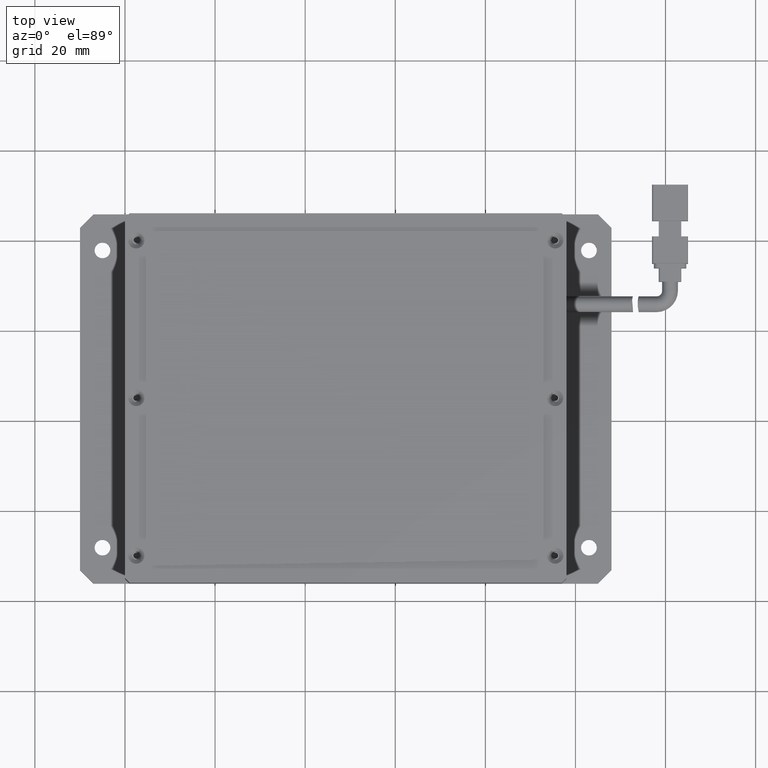
[diagram: clean part render]
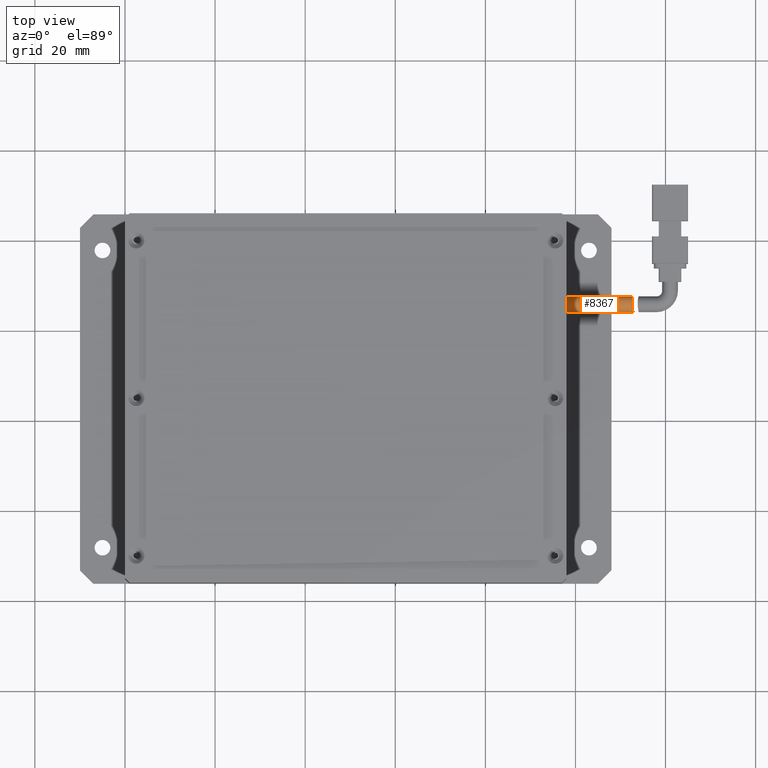
[diagram: same view with one face highlighted and labeled with its STEP entity id]
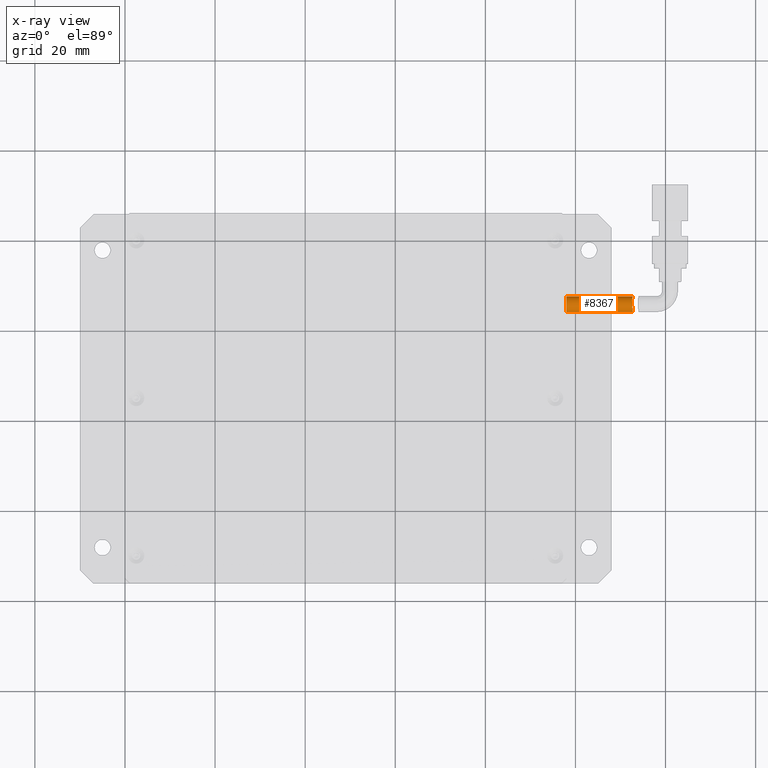
[diagram: x-ray of the same camera — body ghosted, the highlighted face saturated]
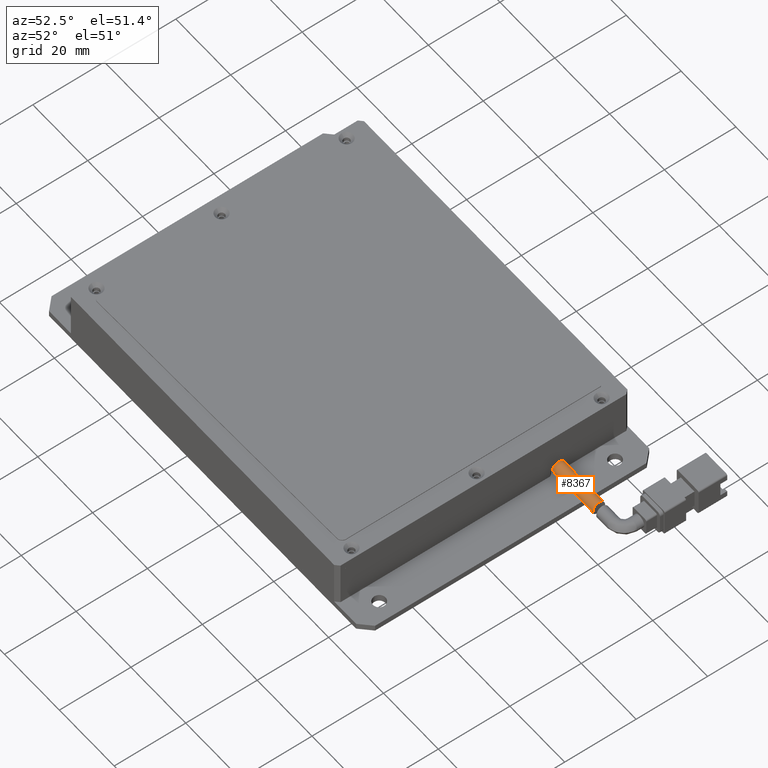
[diagram: same view with one face highlighted and labeled with its STEP entity id]
A machine part, top view. The second image highlights one B-rep face of the part: STEP entity #8367.
The next image is the same camera in x-ray: the body ghosted, the highlighted face saturated — about 0% of this face is hidden behind the body in this view.
A second angle (auxiliary view) of the same face is appended — the face is thin or edge-on in the first view.
In plain terms, the highlighted cylindrical surface (edge-blend (fillet) strip) has radius 1.75 mm, axis along (-1, 0, 0).
Its self-contained STEP definition (entity closure, byte-faithful):
#59 = DIRECTION ( 'NONE',  ( -1.000000000000000000, 1.536194552555083200E-017, 2.339027312099220900E-016 ) ) ;
#126 = CARTESIAN_POINT ( 'NONE',  ( 58.00152730049637700, 25.85299732722415900, 1.599999999995513900 ) ) ;
#130 = CARTESIAN_POINT ( 'NONE',  ( 72.74732067668236400, 24.28112165243644300, 2.377736136171382700 ) ) ;
#183 = CARTESIAN_POINT ( 'NONE',  ( 72.59735757306565100, 26.92812386859669600, 2.999748863427250400 ) ) ;
#1192 = AXIS2_PLACEMENT_3D ( 'NONE', #126, #9224, #1487 ) ;
#1397 = ORIENTED_EDGE ( 'NONE', *, *, #3312, .F. ) ;
#1458 = CIRCLE ( 'NONE', #1192, 1.750000000000001600 ) ;
#1487 = DIRECTION ( 'NONE',  ( 0.0000000000000000000, 1.000000000000000000, -2.478176394252579200E-016 ) ) ;
#1490 = CARTESIAN_POINT ( 'NONE',  ( 72.71381798566815700, 24.46211948964047500, 2.668188415521638700 ) ) ;
#1550 = CARTESIAN_POINT ( 'NONE',  ( 72.65424832023556700, 27.24364953598304200, 2.668417009490236900 ) ) ;
#1812 = ORIENTED_EDGE ( 'NONE', *, *, #12475, .T. ) ;
#2222 = FACE_OUTER_BOUND ( 'NONE', #7211, .T. ) ;
#2510 = ORIENTED_EDGE ( 'NONE', *, *, #15177, .T. ) ;
#2724 = CARTESIAN_POINT ( 'NONE',  ( 72.78236723299365000, 24.10299732722416600, 1.599999999995510300 ) ) ;
#2784 = CARTESIAN_POINT ( 'NONE',  ( 72.78236723299365000, 24.10299732722416600, 1.716052899516882400 ) ) ;
#2844 = CARTESIAN_POINT ( 'NONE',  ( 72.66047130368548300, 24.77731164660563900, 2.998983333042459300 ) ) ;
#2901 = CARTESIAN_POINT ( 'NONE',  ( 72.69614378026540200, 27.42510553884965700, 2.377188015042063900 ) ) ;
#3312 = EDGE_CURVE ( 'NONE', #4270, #4951, #12888, .T. ) ;
#3790 = CARTESIAN_POINT ( 'NONE',  ( 72.74524673965667900, 27.60299732722416300, 1.599999999995509900 ) ) ;
#4202 = CARTESIAN_POINT ( 'NONE',  ( 72.58203419727890100, 25.39172736702606100, 3.303361838495820500 ) ) ;
#4258 = CARTESIAN_POINT ( 'NONE',  ( 72.74524673965669300, 27.60299732722417000, 1.832161965895536600 ) ) ;
#4270 = VERTEX_POINT ( 'NONE', #4660 ) ;
#4660 = CARTESIAN_POINT ( 'NONE',  ( 72.78236723299365000, 24.10299732722416600, 1.599999999995510300 ) ) ;
#4875 = LINE ( 'NONE', #8773, #14611 ) ;
#4951 = VERTEX_POINT ( 'NONE', #9082 ) ;
#5309 = DIRECTION ( 'NONE',  ( -1.000000000000000000, 1.536194552555083200E-017, 2.339027312099220900E-016 ) ) ;
#5412 = DIRECTION ( 'NONE',  ( 0.0000000000000000000, 1.000000000000000000, -2.478176394252579200E-016 ) ) ;
#5473 = CARTESIAN_POINT ( 'NONE',  ( 72.54867533454222400, 25.96528965226578500, 3.350139874396917500 ) ) ;
#5551 = ORIENTED_EDGE ( 'NONE', *, *, #5558, .T. ) ;
#5558 = EDGE_CURVE ( 'NONE', #6083, #4951, #1458, .T. ) ;
#6083 = VERTEX_POINT ( 'NONE', #12715 ) ;
#6700 = CARTESIAN_POINT ( 'NONE',  ( 72.78004893374406900, 24.11442687952659000, 1.830108151942246000 ) ) ;
#6754 = CARTESIAN_POINT ( 'NONE',  ( 72.54895618957618800, 26.30681384673473700, 3.294023032859817200 ) ) ;
#6994 = B_SPLINE_CURVE_WITH_KNOTS ( 'NONE', 3,
 ( #2724, #2784, #6700, #15620, #7968, #130, #9228, #1490, #10498, #2844, #11799, #4202, #13076, #5473, #14378, #6754, #15671, #8026, #183, #9283, #1550, #10552, #2901, #11870, #4258, #13131 ),
 .UNSPECIFIED., .F., .F.,
 ( 4, 2, 2, 2, 2, 2, 2, 2, 2, 2, 2, 2, 4 ),
 ( 2.131774181351993800E-017, 0.0003431607499797079600, 0.0006863214999593946800, 0.001029482249939081300, 0.001372642999918767900, 0.002058964499878149700, 0.002745285999837531000, 0.003088446749817215600, 0.003431607499796900600, 0.004117928999756280200, 0.004461089749735965700, 0.004804250499715652000, 0.005490571999675023000 ),
 .UNSPECIFIED. ) ;
#7211 = EDGE_LOOP ( 'NONE', ( #1397, #1812, #2510, #5551 ) ) ;
#7820 = VERTEX_POINT ( 'NONE', #3790 ) ;
#7896 = CARTESIAN_POINT ( 'NONE',  ( 78.00152730049637700, 25.85299732722415900, 1.599999999995509200 ) ) ;
#7968 = CARTESIAN_POINT ( 'NONE',  ( 72.76437708838992100, 24.19302541970757800, 2.165826740932064200 ) ) ;
#8026 = CARTESIAN_POINT ( 'NONE',  ( 72.57296415906165500, 26.73518127169617400, 3.128794678297858400 ) ) ;
#8367 = ADVANCED_FACE ( 'NONE', ( #2222 ), #13866, .T. ) ;
#8773 = CARTESIAN_POINT ( 'NONE',  ( 78.00152730049637700, 27.60299732722416300, 1.599999999995508800 ) ) ;
#9082 = CARTESIAN_POINT ( 'NONE',  ( 58.00152730049637700, 24.10299732722415900, 1.599999999995512600 ) ) ;
#9191 = CARTESIAN_POINT ( 'NONE',  ( 78.00152730049637700, 24.10299732722415900, 1.599999999995509500 ) ) ;
#9224 = DIRECTION ( 'NONE',  ( 1.000000000000000000, -1.536194552555083200E-017, -2.339027312099220900E-016 ) ) ;
#9228 = CARTESIAN_POINT ( 'NONE',  ( 72.73706568370039300, 24.33497891270726400, 2.478172957523428800 ) ) ;
#9283 = CARTESIAN_POINT ( 'NONE',  ( 72.63960561015025500, 27.17159890954426500, 2.756271316453466000 ) ) ;
#9339 = AXIS2_PLACEMENT_3D ( 'NONE', #7896, #59, #5412 ) ;
#9487 = VECTOR ( 'NONE', #5309, 1000.000000000000000 ) ;
#10035 = DIRECTION ( 'NONE',  ( -1.000000000000000000, 1.536194552555083200E-017, 2.339027312099220900E-016 ) ) ;
#10498 = CARTESIAN_POINT ( 'NONE',  ( 72.70075695400166200, 24.53586346910538700, 2.757841488371570700 ) ) ;
#10552 = CARTESIAN_POINT ( 'NONE',  ( 72.68245870258468200, 27.37021121485096500, 2.479483081752044800 ) ) ;
#11799 = CARTESIAN_POINT ( 'NONE',  ( 72.63106975379383800, 24.97171420923549000, 3.128905358409976000 ) ) ;
#11870 = CARTESIAN_POINT ( 'NONE',  ( 72.73071873189120100, 27.55662836284987800, 2.060785257602499000 ) ) ;
#12475 = EDGE_CURVE ( 'NONE', #4270, #7820, #6994, .T. ) ;
#12715 = CARTESIAN_POINT ( 'NONE',  ( 58.00152730049637700, 27.60299732722416300, 1.599999999995513500 ) ) ;
#12888 = LINE ( 'NONE', #9191, #9487 ) ;
#13076 = CARTESIAN_POINT ( 'NONE',  ( 72.56214707163887600, 25.62193540860885200, 3.349716255476832900 ) ) ;
#13131 = CARTESIAN_POINT ( 'NONE',  ( 72.74524673965667900, 27.60299732722416300, 1.599999999995509900 ) ) ;
#13866 = CYLINDRICAL_SURFACE ( 'NONE', #9339, 1.750000000000001600 ) ;
#14378 = CARTESIAN_POINT ( 'NONE',  ( 72.54680231544954000, 26.08175546475252200, 3.338773471086565100 ) ) ;
#14611 = VECTOR ( 'NONE', #10035, 1000.000000000000000 ) ;
#15177 = EDGE_CURVE ( 'NONE', #7820, #6083, #4875, .T. ) ;
#15620 = CARTESIAN_POINT ( 'NONE',  ( 72.77111031921863600, 24.15915641973685300, 2.054400641854929900 ) ) ;
#15671 = CARTESIAN_POINT ( 'NONE',  ( 72.55289730822252600, 26.41624598913340400, 3.260870664716263100 ) ) ;